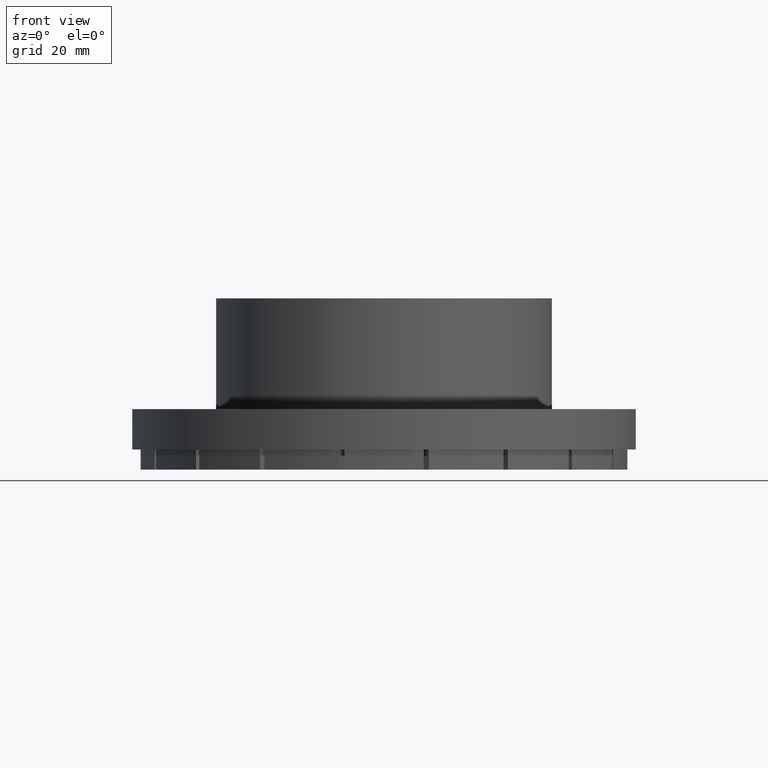
[diagram: clean part render]
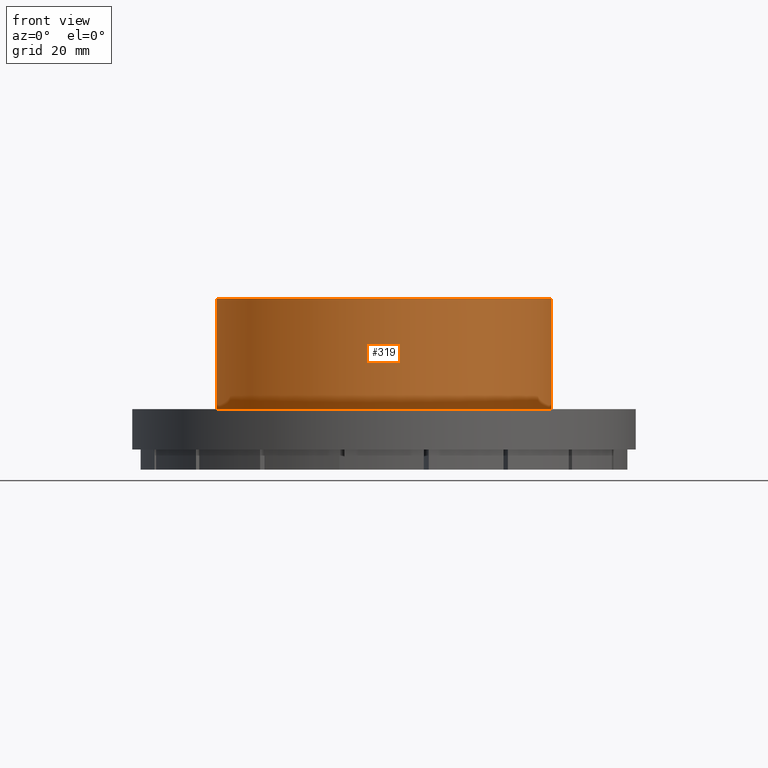
[diagram: same view with one face highlighted and labeled with its STEP entity id]
A machine part, front view. The second image highlights one B-rep face of the part: STEP entity #319.
In plain terms, the highlighted cylindrical surface (bore or boss wall) has radius 50 mm, axis along (0, -0, 1).
Its self-contained STEP definition (entity closure, byte-faithful):
#319 = ADVANCED_FACE( '', ( #492, #493, #494 ), #495, .T. );
#492 = FACE_BOUND( '', #764, .T. );
#493 = FACE_OUTER_BOUND( '', #765, .T. );
#494 = FACE_OUTER_BOUND( '', #766, .T. );
#495 = CYLINDRICAL_SURFACE( '', #767, 50.0000000000000 );
#764 = EDGE_LOOP( '', ( #1059 ) );
#765 = EDGE_LOOP( '', ( #1060 ) );
#766 = EDGE_LOOP( '', ( #1061 ) );
#767 = AXIS2_PLACEMENT_3D( '', #1062, #1063, #1064 );
#1059 = ORIENTED_EDGE( '', *, *, #1920, .T. );
#1060 = ORIENTED_EDGE( '', *, *, #1921, .T. );
#1061 = ORIENTED_EDGE( '', *, *, #1922, .T. );
#1062 = CARTESIAN_POINT( '', ( 0.000000000000000, 0.000000000000000, 83.9999999998618 ) );
#1063 = DIRECTION( '', ( 0.000000000000000, -0.000000000000000, 1.00000000000000 ) );
#1064 = DIRECTION( '', ( -1.00000000000000, 0.000000000000000, 0.000000000000000 ) );
#1920 = EDGE_CURVE( '', #2211, #2211, #2212, .T. );
#1921 = EDGE_CURVE( '', #2213, #2213, #2214, .F. );
#1922 = EDGE_CURVE( '', #2215, #2215, #2216, .T. );
#2211 = VERTEX_POINT( '', #2692 );
#2212 = B_SPLINE_CURVE_WITH_KNOTS( '', 3, ( #2693, #2694, #2695, #2696, #2697, #2698, #2699, #2700, #2701, #2702, #2703, #2704, #2705, #2706, #2707, #2708, #2709, #2710, #2711, #2712, #2713, #2714, #2715, #2716, #2717, #2718, #2719, #2720, #2721, #2722, #2723, #2724, #2725, #2726, #2727, #2728, #2729, #2730, #2731, #2732, #2733, #2734, #2735, #2736, #2737, #2738, #2739, #2740, #2741, #2742, #2743, #2744, #2745, #2746, #2747, #2748, #2749, #2750, #2751, #2752, #2753, #2754, #2755, #2756, #2757, #2758, #2759, #2760, #2761, #2762, #2763, #2764, #2765, #2766, #2767, #2768 ), .UNSPECIFIED., .T., .F., ( 2, 2, 2, 2, 2, 2, 2, 2, 2, 2, 2, 2, 2, 2, 2, 2, 2, 2, 2, 2, 2, 2, 2, 2, 2, 2, 2, 2, 2, 2, 2, 2, 2, 2, 2, 2, 2, 2, 2, 2 ), ( -0.00100198257042292, 0.000000000000000, 0.00100198257042294, 0.00150297385563442, 0.00200396514084589, 0.00300594771126883, 0.00400793028169178, 0.00500991285211472, 0.00601189542253767, 0.00701387799296061, 0.00801586056338356, 0.00901784313380650, 0.0100198257042294, 0.0105208169894409, 0.0110218082746524, 0.0120237908450753, 0.0130257734154982, 0.0135267647007097, 0.0140277559859211, 0.0150297385563440, 0.0160317211267670, 0.0170337036971899, 0.0180356862676128, 0.0190376688380357, 0.0200396514084586, 0.0210416339788815, 0.0220436165493044, 0.0225446078345159, 0.0230455991197273, 0.0240475816901502, 0.0250495642605731, 0.0255505555457846, 0.0260515468309961, 0.0270535294014190, 0.0280555119718419, 0.0290574945422648, 0.0300594771126877, 0.0310614596831107, 0.0320634422535336, 0.0330654248239565 ), .UNSPECIFIED. );
#2213 = VERTEX_POINT( '', #2769 );
#2214 = CIRCLE( '', #2770, 50.0000000000000 );
#2215 = VERTEX_POINT( '', #2771 );
#2216 = CIRCLE( '', #2772, 50.0000000000000 );
#2692 = CARTESIAN_POINT( '', ( -5.12499999999999, 49.7366502189281, 37.0000000000000 ) );
#2693 = CARTESIAN_POINT( '', ( -5.12499999999999, 49.7366502189281, 37.3388204673295 ) );
#2694 = CARTESIAN_POINT( '', ( -5.12499999999999, 49.7366502189281, 36.6611795326705 ) );
#2695 = CARTESIAN_POINT( '', ( -5.09173128119663, 49.7401101845894, 36.3280657503950 ) );
#2696 = CARTESIAN_POINT( '', ( -4.99399765620051, 49.7499855232503, 35.8365946842175 ) );
#2697 = CARTESIAN_POINT( '', ( -4.95338855582480, 49.7540586136870, 35.6741476992377 ) );
#2698 = CARTESIAN_POINT( '', ( -4.85574508317449, 49.7636830068515, 35.3520672963863 ) );
#2699 = CARTESIAN_POINT( '', ( -4.79845027744467, 49.7692580876151, 35.1920440748828 ) );
#2700 = CARTESIAN_POINT( '', ( -4.60546321353618, 49.7876130299070, 34.7266429321671 ) );
#2701 = CARTESIAN_POINT( '', ( -4.44803361356974, 49.8021066609803, 34.4323663506851 ) );
#2702 = CARTESIAN_POINT( '', ( -4.07613140626013, 49.8339240242829, 33.8754362955061 ) );
#2703 = CARTESIAN_POINT( '', ( -3.85980957327279, 49.8513588616328, 33.6119173982553 ) );
#2704 = CARTESIAN_POINT( '', ( -3.38730307230780, 49.8856922192081, 33.1395063068944 ) );
#2705 = CARTESIAN_POINT( '', ( -3.12944264240084, 49.9027582536050, 32.9274401162221 ) );
#2706 = CARTESIAN_POINT( '', ( -2.56931048120593, 49.9347307614749, 32.5527762693789 ) );
#2707 = CARTESIAN_POINT( '', ( -2.27133977893861, 49.9493363802172, 32.3936972681828 ) );
#2708 = CARTESIAN_POINT( '', ( -1.65476054377738, 49.9735625782096, 32.1380274793771 ) );
#2709 = CARTESIAN_POINT( '', ( -1.33158979835896, 49.9833607833587, 32.0395287575828 ) );
#2710 = CARTESIAN_POINT( '', ( -0.669947210487727, 49.9966064580953, 31.9077925147239 ) );
#2711 = CARTESIAN_POINT( '', ( -0.337277562917591, 49.9999811584291, 31.8751838202307 ) );
#2712 = CARTESIAN_POINT( '', ( 0.331667867934334, 50.0000186842275, 31.8748177148269 ) );
#2713 = CARTESIAN_POINT( '', ( 0.671437700666844, 49.9965726557503, 31.9081302443663 ) );
#2714 = CARTESIAN_POINT( '', ( 1.32889538241302, 49.9834186803003, 32.0389513954391 ) );
#2715 = CARTESIAN_POINT( '', ( 1.64847003190247, 49.9737834095882, 32.1357440483854 ) );
#2716 = CARTESIAN_POINT( '', ( 2.11403492574658, 49.9555299917972, 32.3283102698329 ) );
#2717 = CARTESIAN_POINT( '', ( 2.26766421977926, 49.9487713074250, 32.4009113907298 ) );
#2718 = CARTESIAN_POINT( '', ( 2.56434342560779, 49.9344189806055, 32.5594977935905 ) );
#2719 = CARTESIAN_POINT( '', ( 2.70784691234391, 49.9268153261803, 32.6455718606869 ) );
#2720 = CARTESIAN_POINT( '', ( 3.12419764570397, 49.9030728826530, 32.9236742825055 ) );
#2721 = CARTESIAN_POINT( '', ( 3.38302477978263, 49.8859973585460, 33.1353856474083 ) );
#2722 = CARTESIAN_POINT( '', ( 3.86171822451330, 49.8512258773237, 33.6136696691931 ) );
#2723 = CARTESIAN_POINT( '', ( 4.07364011404923, 49.8341264591508, 33.8723072549390 ) );
#2724 = CARTESIAN_POINT( '', ( 4.35205845173306, 49.8103228574565, 34.2883478460035 ) );
#2725 = CARTESIAN_POINT( '', ( 4.43823960873605, 49.8026945666266, 34.4317454790918 ) );
#2726 = CARTESIAN_POINT( '', ( 4.59704799159929, 49.7882868422301, 34.7282051431408 ) );
#2727 = CARTESIAN_POINT( '', ( 4.66979768434424, 49.7814942125563, 34.8817872110830 ) );
#2728 = CARTESIAN_POINT( '', ( 4.86280301583634, 49.7631374876936, 35.3472401394862 ) );
#2729 = CARTESIAN_POINT( '', ( 4.95985179748474, 49.7534343396594, 35.6666819885384 ) );
#2730 = CARTESIAN_POINT( '', ( 5.09122018100683, 49.7401632035151, 36.3237279828284 ) );
#2731 = CARTESIAN_POINT( '', ( 5.12487643470546, 49.7366629514320, 36.6635518109727 ) );
#2732 = CARTESIAN_POINT( '', ( 5.12512287012566, 49.7366375580563, 37.3326731444135 ) );
#2733 = CARTESIAN_POINT( '', ( 5.09280115106553, 49.7400011454252, 37.6653358049671 ) );
#2734 = CARTESIAN_POINT( '', ( 4.96174907646465, 49.7532449556147, 38.3267785798195 ) );
#2735 = CARTESIAN_POINT( '', ( 4.86346221756464, 49.7630702598852, 38.6503915685916 ) );
#2736 = CARTESIAN_POINT( '', ( 4.60828334759402, 49.7873493070302, 39.2673291908421 ) );
#2737 = CARTESIAN_POINT( '', ( 4.44949857828275, 49.8019801784863, 39.5653750088776 ) );
#2738 = CARTESIAN_POINT( '', ( 4.07527403139424, 49.8339985237541, 40.1259123633521 ) );
#2739 = CARTESIAN_POINT( '', ( 3.86341324379961, 49.8510785365799, 40.3839732300398 ) );
#2740 = CARTESIAN_POINT( '', ( 3.39140287328891, 49.8854124940716, 40.8568929548329 ) );
#2741 = CARTESIAN_POINT( '', ( 3.12806796245372, 49.9028344881871, 41.0734416389671 ) );
#2742 = CARTESIAN_POINT( '', ( 2.57148291625212, 49.9346089876004, 41.4458083151688 ) );
#2743 = CARTESIAN_POINT( '', ( 2.27739029709354, 49.9490718544279, 41.6034627825467 ) );
#2744 = CARTESIAN_POINT( '', ( 1.81230171177853, 49.9673857023410, 41.7968088657338 ) );
#2745 = CARTESIAN_POINT( '', ( 1.65235706159979, 49.9729494125556, 41.8542428827821 ) );
#2746 = CARTESIAN_POINT( '', ( 1.33027783310117, 49.9825601358676, 41.9522034197738 ) );
#2747 = CARTESIAN_POINT( '', ( 1.16784620114046, 49.9866279531354, 41.9929609564359 ) );
#2748 = CARTESIAN_POINT( '', ( 0.676468070373275, 49.9964973417992, 42.0911306600610 ) );
#2749 = CARTESIAN_POINT( '', ( 0.343478126345751, 49.9999668781524, 42.1246768598798 ) );
#2750 = CARTESIAN_POINT( '', ( -0.333766404167239, 50.0000326502599, 42.1253185392632 ) );
#2751 = CARTESIAN_POINT( '', ( -0.667386823492709, 49.9966200755978, 42.0923283647226 ) );
#2752 = CARTESIAN_POINT( '', ( -1.15892381932997, 49.9868357832335, 41.9950393059086 ) );
#2753 = CARTESIAN_POINT( '', ( -1.32137453010940, 49.9827962576260, 41.9545828674523 ) );
#2754 = CARTESIAN_POINT( '', ( -1.64342774247632, 49.9732438174213, 41.8572695307685 ) );
#2755 = CARTESIAN_POINT( '', ( -1.80353213425581, 49.9677036787765, 41.8001168672493 ) );
#2756 = CARTESIAN_POINT( '', ( -2.26927710870971, 49.9494438183360, 41.6074837816388 ) );
#2757 = CARTESIAN_POINT( '', ( -2.56371182378445, 49.9350101556900, 41.4502904388433 ) );
#2758 = CARTESIAN_POINT( '', ( -3.12086879192654, 49.9032868210888, 41.0789559067304 ) );
#2759 = CARTESIAN_POINT( '', ( -3.38462493160494, 49.8858749287634, 40.8628462063692 ) );
#2760 = CARTESIAN_POINT( '', ( -3.85752473704204, 49.8515366487230, 40.3906886682224 ) );
#2761 = CARTESIAN_POINT( '', ( -4.06978714050237, 49.8344484480888, 40.1330344170691 ) );
#2762 = CARTESIAN_POINT( '', ( -4.44482158144495, 49.8023993458481, 39.5734477139936 ) );
#2763 = CARTESIAN_POINT( '', ( -4.60429532197761, 49.7877196139532, 39.2754063054558 ) );
#2764 = CARTESIAN_POINT( '', ( -4.86050947453911, 49.7633600897037, 38.6590530174797 ) );
#2765 = CARTESIAN_POINT( '', ( -4.95916016366169, 49.7535040858524, 38.3366189500375 ) );
#2766 = CARTESIAN_POINT( '', ( -5.09172733024846, 49.7401120942060, 37.6738935678943 ) );
#2767 = CARTESIAN_POINT( '', ( -5.12499999999999, 49.7366502189281, 37.3388204673295 ) );
#2768 = CARTESIAN_POINT( '', ( -5.12499999999999, 49.7366502189281, 36.6611795326705 ) );
#2769 = CARTESIAN_POINT( '', ( 50.0000000000000, 0.000000000000000, 51.0000000000000 ) );
#2770 = AXIS2_PLACEMENT_3D( '', #3521, #3522, #3523 );
#2771 = CARTESIAN_POINT( '', ( 50.0000000000000, 0.000000000000000, 18.0000000000000 ) );
#2772 = AXIS2_PLACEMENT_3D( '', #3524, #3525, #3526 );
#3521 = CARTESIAN_POINT( '', ( 0.000000000000000, 0.000000000000000, 51.0000000000000 ) );
#3522 = DIRECTION( '', ( 0.000000000000000, 0.000000000000000, 1.00000000000000 ) );
#3523 = DIRECTION( '', ( 1.00000000000000, 0.000000000000000, -0.000000000000000 ) );
#3524 = CARTESIAN_POINT( '', ( 0.000000000000000, 0.000000000000000, 18.0000000000000 ) );
#3525 = DIRECTION( '', ( 0.000000000000000, 0.000000000000000, 1.00000000000000 ) );
#3526 = DIRECTION( '', ( 1.00000000000000, 0.000000000000000, 0.000000000000000 ) );